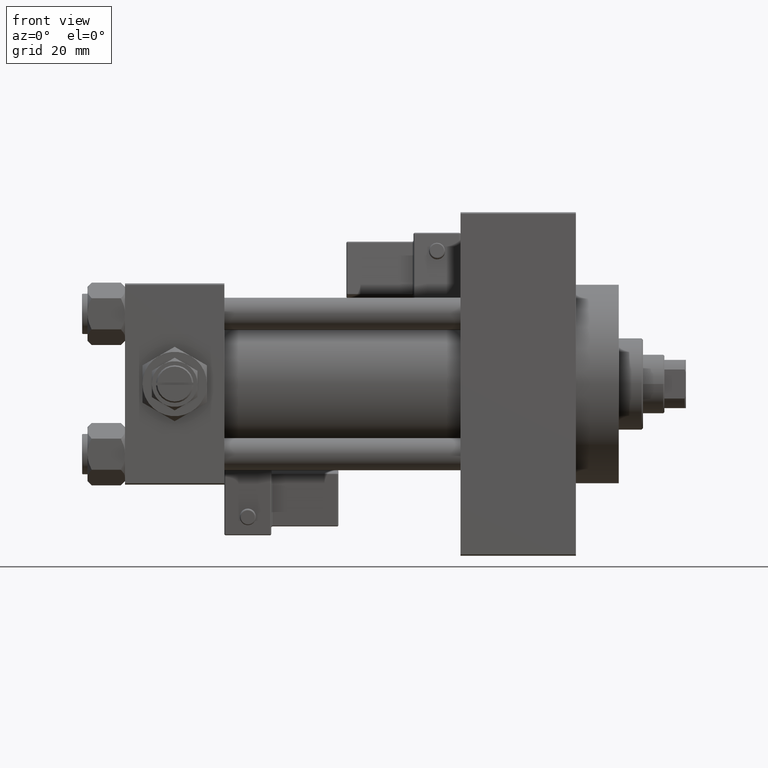
[diagram: clean part render]
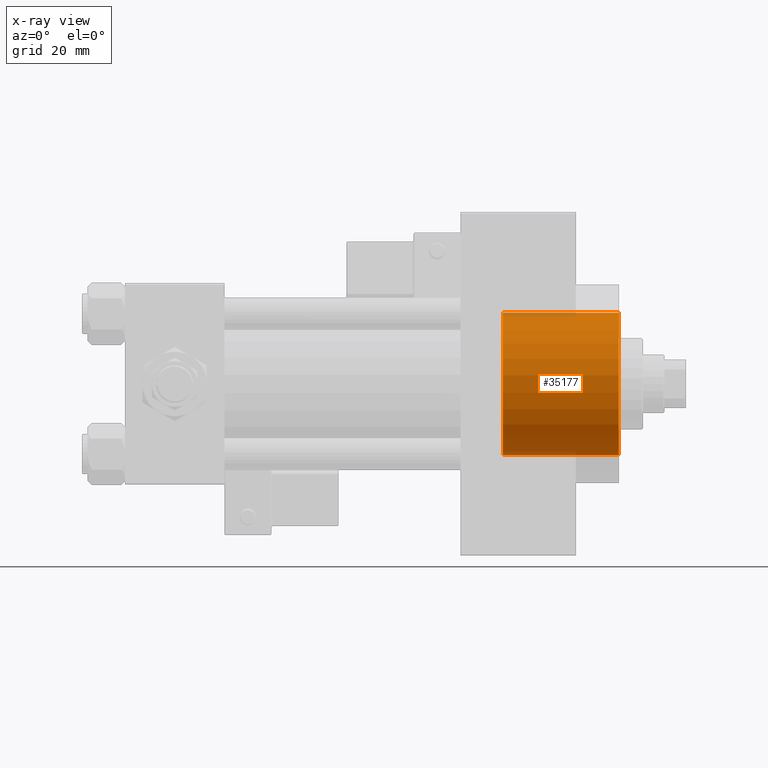
[diagram: x-ray — body ghosted, one internal face saturated and labeled with its STEP entity id]
A machine part, front view, then the same camera in x-ray: the body is ghosted and one INTERNAL B-rep face — a face not visible from any outside direction — is saturated and labeled: STEP entity #35177.
In plain terms, the highlighted cylindrical surface (partial cylindrical patch) has radius 26.5 mm, axis along (1, 0, 0).
Its self-contained STEP definition (entity closure, byte-faithful):
#6 = EDGE_CURVE ( 'NONE', #8760, #35613, #44258, .T. ) ;
#372 = CARTESIAN_POINT ( 'NONE',  ( 140.7400000000000091, 3.245314017740486554E-15, 26.50000000000000355 ) ) ;
#503 = EDGE_CURVE ( 'NONE', #38980, #35613, #24501, .T. ) ;
#603 = DIRECTION ( 'NONE',  ( 0.000000000000000000, 0.000000000000000000, -1.000000000000000000 ) ) ;
#1533 = AXIS2_PLACEMENT_3D ( 'NONE', #26654, #50059, #22530 ) ;
#1922 = EDGE_CURVE ( 'NONE', #16882, #8760, #23722, .T. ) ;
#4096 = CARTESIAN_POINT ( 'NONE',  ( 184.0000000000000000, 3.245314017740486554E-15, 26.50000000000000355 ) ) ;
#4708 = FACE_OUTER_BOUND ( 'NONE', #16577, .T. ) ;
#7289 = CARTESIAN_POINT ( 'NONE',  ( 184.0000000000000000, 0.000000000000000000, -26.50000000000000355 ) ) ;
#8760 = VERTEX_POINT ( 'NONE', #37757 ) ;
#9019 = CARTESIAN_POINT ( 'NONE',  ( 140.7400000000000091, 0.000000000000000000, -26.50000000000000355 ) ) ;
#13184 = DIRECTION ( 'NONE',  ( 1.000000000000000000, -0.000000000000000000, -0.000000000000000000 ) ) ;
#15376 = ORIENTED_EDGE ( 'NONE', *, *, #1922, .F. ) ;
#16577 = EDGE_LOOP ( 'NONE', ( #15376, #40234, #45051, #34376 ) ) ;
#16882 = VERTEX_POINT ( 'NONE', #372 ) ;
#17735 = VECTOR ( 'NONE', #45152, 1000.000000000000000 ) ;
#19167 = DIRECTION ( 'NONE',  ( 1.000000000000000000, 0.000000000000000000, 0.000000000000000000 ) ) ;
#20336 = DIRECTION ( 'NONE',  ( 1.000000000000000000, -0.000000000000000000, -0.000000000000000000 ) ) ;
#20399 = CYLINDRICAL_SURFACE ( 'NONE', #21846, 26.50000000000000355 ) ;
#21846 = AXIS2_PLACEMENT_3D ( 'NONE', #48685, #13184, #603 ) ;
#22530 = DIRECTION ( 'NONE',  ( 0.000000000000000000, 0.000000000000000000, -1.000000000000000000 ) ) ;
#23275 = DIRECTION ( 'NONE',  ( 0.000000000000000000, 0.000000000000000000, -1.000000000000000000 ) ) ;
#23722 = CIRCLE ( 'NONE', #43410, 26.50000000000000355 ) ;
#24501 = CIRCLE ( 'NONE', #1533, 26.50000000000000355 ) ;
#24590 = LINE ( 'NONE', #29466, #17735 ) ;
#26654 = CARTESIAN_POINT ( 'NONE',  ( 184.0000000000000000, 0.000000000000000000, 0.000000000000000000 ) ) ;
#29466 = CARTESIAN_POINT ( 'NONE',  ( 140.7400000000000091, 3.245314017740486554E-15, 26.50000000000000355 ) ) ;
#34376 = ORIENTED_EDGE ( 'NONE', *, *, #6, .F. ) ;
#35177 = ADVANCED_FACE ( 'NONE', ( #4708 ), #20399, .F. ) ;
#35613 = VERTEX_POINT ( 'NONE', #7289 ) ;
#37643 = EDGE_CURVE ( 'NONE', #16882, #38980, #24590, .T. ) ;
#37757 = CARTESIAN_POINT ( 'NONE',  ( 140.7400000000000091, 0.000000000000000000, -26.50000000000000355 ) ) ;
#38980 = VERTEX_POINT ( 'NONE', #4096 ) ;
#39293 = VECTOR ( 'NONE', #20336, 1000.000000000000000 ) ;
#40234 = ORIENTED_EDGE ( 'NONE', *, *, #37643, .T. ) ;
#42837 = CARTESIAN_POINT ( 'NONE',  ( 140.7400000000000091, 0.000000000000000000, 0.000000000000000000 ) ) ;
#43410 = AXIS2_PLACEMENT_3D ( 'NONE', #42837, #19167, #23275 ) ;
#44258 = LINE ( 'NONE', #9019, #39293 ) ;
#45051 = ORIENTED_EDGE ( 'NONE', *, *, #503, .T. ) ;
#45152 = DIRECTION ( 'NONE',  ( 1.000000000000000000, -0.000000000000000000, -0.000000000000000000 ) ) ;
#48685 = CARTESIAN_POINT ( 'NONE',  ( 140.7400000000000091, 0.000000000000000000, 0.000000000000000000 ) ) ;
#50059 = DIRECTION ( 'NONE',  ( 1.000000000000000000, 0.000000000000000000, 0.000000000000000000 ) ) ;